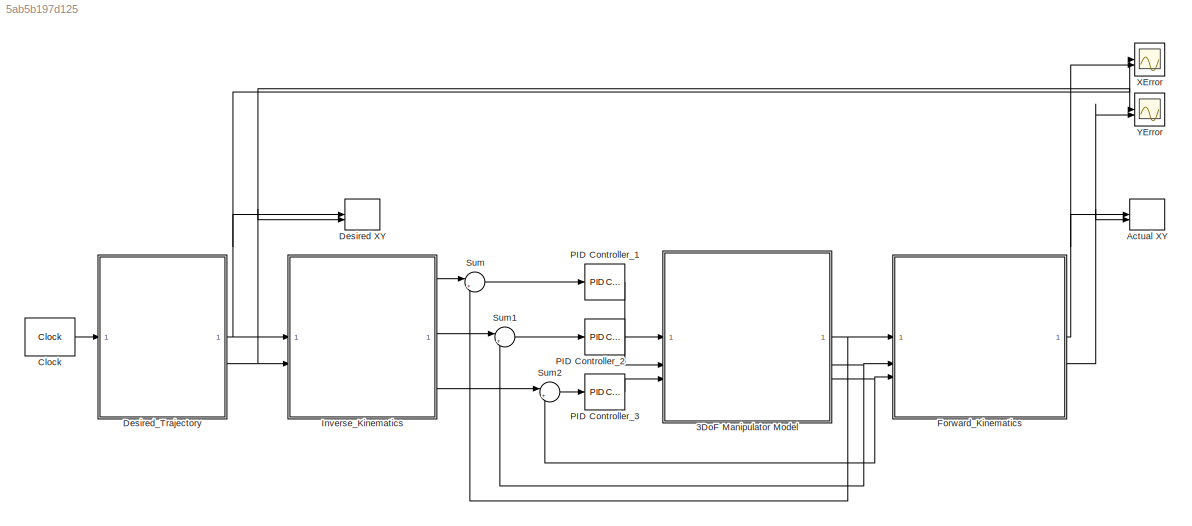
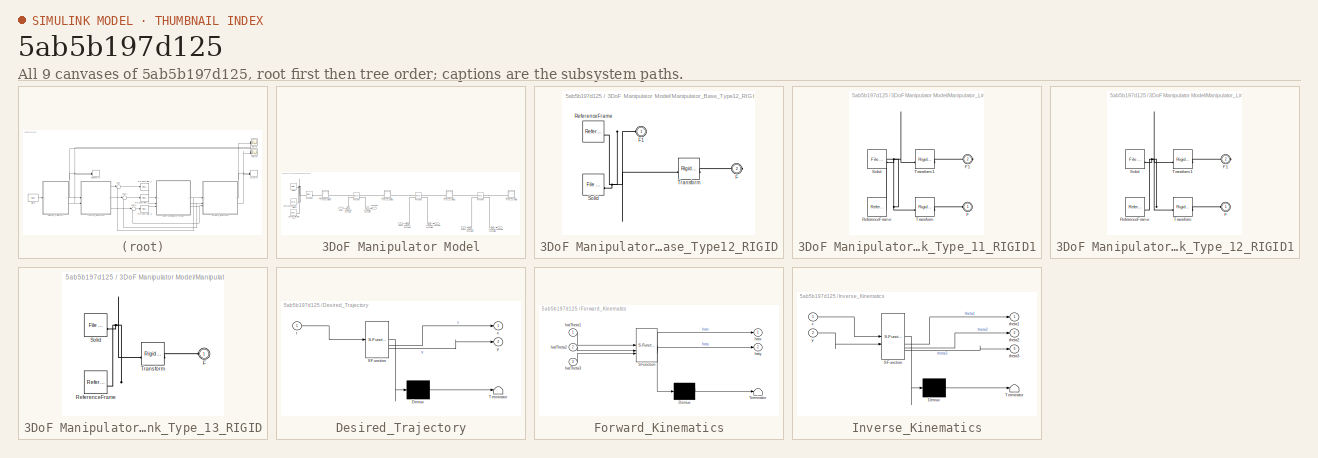
[diagram: thumbnail index - all 9 canvases of the model, root first then tree order]
MODEL slx_5ab5b197d125
KIND model
CONFIG AbsTol = auto
CONFIG EnableMultiTasking = off
CONFIG FixedStep = auto
CONFIG MaxStep = auto
CONFIG MinStep = auto
CONFIG RelTol = 1e-3
CONFIG SampleTimeConstraint = Unconstrained
CONFIG SolverName = VariableStepAuto
CONFIG StartTime = 0.0
CONFIG StopTime = 10.0
WORKSPACE source: external: MATLAB File  (data not in archive)
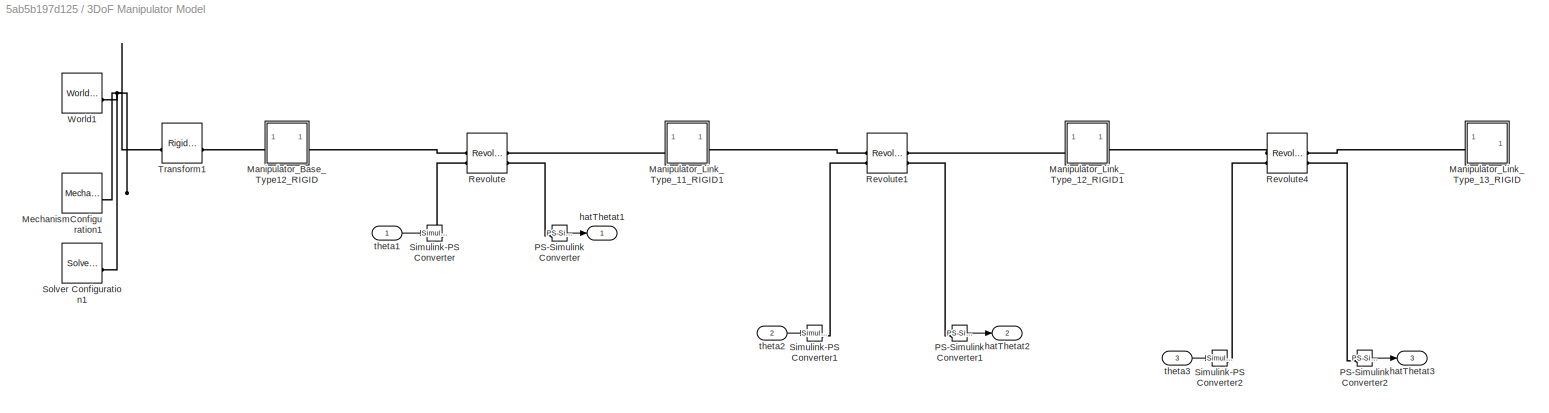
BLOCK [SubSystem] 3DoF Manipulator Model
BLOCK [SubSystem] 3DoF Manipulator Model/Manipulator_Base_Type12_RIGID
BLOCK [PMIOPort] 3DoF Manipulator Model/Manipulator_Base_Type12_RIGID/F
  Port = 2
  Side = Right
BLOCK [PMIOPort] 3DoF Manipulator Model/Manipulator_Base_Type12_RIGID/F1
  Side = Left
BLOCK [Reference] 3DoF Manipulator Model/Manipulator_Base_Type12_RIGID/ReferenceFrame  REF=sm_lib/Frames and
Transforms/Reference
Frame
  SourceBlock = sm_lib/Frames and\nTransforms/Reference\nFrame
  SourceType = Reference\nFrame
BLOCK [Reference] 3DoF Manipulator Model/Manipulator_Base_Type12_RIGID/Solid  REF=sm_lib/Body Elements/File Solid
  SourceBlock = sm_lib/Body Elements/File Solid
  SourceType = File Solid
BLOCK [Reference] 3DoF Manipulator Model/Manipulator_Base_Type12_RIGID/Transform  REF=sm_lib/Frames and
Transforms/Rigid
Transform
  SourceBlock = sm_lib/Frames and\nTransforms/Rigid\nTransform
  SourceType = Rigid\nTransform
BLOCK [SubSystem] 3DoF Manipulator Model/Manipulator_Link_Type_11_RIGID1
BLOCK [PMIOPort] 3DoF Manipulator Model/Manipulator_Link_Type_11_RIGID1/F
  Side = Left
BLOCK [PMIOPort] 3DoF Manipulator Model/Manipulator_Link_Type_11_RIGID1/F1
  Port = 2
  Side = Right
BLOCK [Reference] 3DoF Manipulator Model/Manipulator_Link_Type_11_RIGID1/ReferenceFrame  REF=sm_lib/Frames and
Transforms/Reference
Frame
  SourceBlock = sm_lib/Frames and\nTransforms/Reference\nFrame
  SourceType = Reference\nFrame
BLOCK [Reference] 3DoF Manipulator Model/Manipulator_Link_Type_11_RIGID1/Solid  REF=sm_lib/Body Elements/File Solid
  SourceBlock = sm_lib/Body Elements/File Solid
  SourceType = File Solid
BLOCK [Reference] 3DoF Manipulator Model/Manipulator_Link_Type_11_RIGID1/Transform  REF=sm_lib/Frames and
Transforms/Rigid
Transform
  SourceBlock = sm_lib/Frames and\nTransforms/Rigid\nTransform
  SourceType = Rigid\nTransform
BLOCK [Reference] 3DoF Manipulator Model/Manipulator_Link_Type_11_RIGID1/Transform1  REF=sm_lib/Frames and
Transforms/Rigid
Transform
  SourceBlock = sm_lib/Frames and\nTransforms/Rigid\nTransform
  SourceType = Rigid\nTransform
BLOCK [SubSystem] 3DoF Manipulator Model/Manipulator_Link_Type_12_RIGID1
BLOCK [PMIOPort] 3DoF Manipulator Model/Manipulator_Link_Type_12_RIGID1/F
  Side = Left
BLOCK [PMIOPort] 3DoF Manipulator Model/Manipulator_Link_Type_12_RIGID1/F1
  Port = 2
  Side = Right
BLOCK [Reference] 3DoF Manipulator Model/Manipulator_Link_Type_12_RIGID1/ReferenceFrame  REF=sm_lib/Frames and
Transforms/Reference
Frame
  SourceBlock = sm_lib/Frames and\nTransforms/Reference\nFrame
  SourceType = Reference\nFrame
BLOCK [Reference] 3DoF Manipulator Model/Manipulator_Link_Type_12_RIGID1/Solid  REF=sm_lib/Body Elements/File Solid
  SourceBlock = sm_lib/Body Elements/File Solid
  SourceType = File Solid
BLOCK [Reference] 3DoF Manipulator Model/Manipulator_Link_Type_12_RIGID1/Transform  REF=sm_lib/Frames and
Transforms/Rigid
Transform
  SourceBlock = sm_lib/Frames and\nTransforms/Rigid\nTransform
  SourceType = Rigid\nTransform
BLOCK [Reference] 3DoF Manipulator Model/Manipulator_Link_Type_12_RIGID1/Transform1  REF=sm_lib/Frames and
Transforms/Rigid
Transform
  SourceBlock = sm_lib/Frames and\nTransforms/Rigid\nTransform
  SourceType = Rigid\nTransform
BLOCK [SubSystem] 3DoF Manipulator Model/Manipulator_Link_Type_13_RIGID
BLOCK [PMIOPort] 3DoF Manipulator Model/Manipulator_Link_Type_13_RIGID/F
  Side = Left
BLOCK [Reference] 3DoF Manipulator Model/Manipulator_Link_Type_13_RIGID/ReferenceFrame  REF=sm_lib/Frames and
Transforms/Reference
Frame
  SourceBlock = sm_lib/Frames and\nTransforms/Reference\nFrame
  SourceType = Reference\nFrame
BLOCK [Reference] 3DoF Manipulator Model/Manipulator_Link_Type_13_RIGID/Solid  REF=sm_lib/Body Elements/File Solid
  SourceBlock = sm_lib/Body Elements/File Solid
  SourceType = File Solid
BLOCK [Reference] 3DoF Manipulator Model/Manipulator_Link_Type_13_RIGID/Transform  REF=sm_lib/Frames and
Transforms/Rigid
Transform
  SourceBlock = sm_lib/Frames and\nTransforms/Rigid\nTransform
  SourceType = Rigid\nTransform
BLOCK [Reference] 3DoF Manipulator Model/MechanismConfiguration1  REF=sm_lib/Utilities/Mechanism
Configuration
  SourceBlock = sm_lib/Utilities/Mechanism\nConfiguration
  SourceType = Mechanism\nConfiguration
BLOCK [Reference] 3DoF Manipulator Model/PS-Simulink Converter  REF=nesl_utility/PS-Simulink
Converter
  SourceBlock = nesl_utility/PS-Simulink\nConverter
  SourceType = PS-Simulink\nConverter
BLOCK [Reference] 3DoF Manipulator Model/PS-Simulink Converter1  REF=nesl_utility/PS-Simulink
Converter
  SourceBlock = nesl_utility/PS-Simulink\nConverter
  SourceType = PS-Simulink\nConverter
BLOCK [Reference] 3DoF Manipulator Model/PS-Simulink Converter2  REF=nesl_utility/PS-Simulink
Converter
  SourceBlock = nesl_utility/PS-Simulink\nConverter
  SourceType = PS-Simulink\nConverter
BLOCK [Reference] 3DoF Manipulator Model/Revolute  REF=sm_lib/Joints/Revolute Joint
  SourceBlock = sm_lib/Joints/Revolute Joint
  SourceType = Revolute Joint
BLOCK [Reference] 3DoF Manipulator Model/Revolute1  REF=sm_lib/Joints/Revolute Joint
  SourceBlock = sm_lib/Joints/Revolute Joint
  SourceType = Revolute Joint
BLOCK [Reference] 3DoF Manipulator Model/Revolute4  REF=sm_lib/Joints/Revolute Joint
  SourceBlock = sm_lib/Joints/Revolute Joint
  SourceType = Revolute Joint
BLOCK [Reference] 3DoF Manipulator Model/Simulink-PS Converter  REF=nesl_utility/Simulink-PS
Converter
  SourceBlock = nesl_utility/Simulink-PS\nConverter
  SourceType = Simulink-PS\nConverter
BLOCK [Reference] 3DoF Manipulator Model/Simulink-PS Converter1  REF=nesl_utility/Simulink-PS
Converter
  SourceBlock = nesl_utility/Simulink-PS\nConverter
  SourceType = Simulink-PS\nConverter
BLOCK [Reference] 3DoF Manipulator Model/Simulink-PS Converter2  REF=nesl_utility/Simulink-PS
Converter
  SourceBlock = nesl_utility/Simulink-PS\nConverter
  SourceType = Simulink-PS\nConverter
BLOCK [Reference] 3DoF Manipulator Model/Solver Configuration1  REF=nesl_utility/Solver
Configuration
  SourceBlock = nesl_utility/Solver\nConfiguration
  SourceType = Solver\nConfiguration
BLOCK [Reference] 3DoF Manipulator Model/Transform1  REF=sm_lib/Frames and
Transforms/Rigid
Transform
  SourceBlock = sm_lib/Frames and\nTransforms/Rigid\nTransform
  SourceType = Rigid\nTransform
BLOCK [Reference] 3DoF Manipulator Model/World1  REF=sm_lib/Frames and
Transforms/World Frame
  SourceBlock = sm_lib/Frames and\nTransforms/World Frame
  SourceType = World Frame
BLOCK [Outport] 3DoF Manipulator Model/hatThetat1
BLOCK [Outport] 3DoF Manipulator Model/hatThetat2
  Port = 2
BLOCK [Outport] 3DoF Manipulator Model/hatThetat3
  Port = 3
BLOCK [Inport] 3DoF Manipulator Model/theta1
BLOCK [Inport] 3DoF Manipulator Model/theta2
  Port = 2
BLOCK [Inport] 3DoF Manipulator Model/theta3
  Port = 3
BLOCK [Record] Actual XY
  CompatibilityTag = XY
  FileSettingsInternal = {"entries":[{"content":{"excelSettings":{"content":{},"type":"Streamout.ExcelSettings"}},"type":"Streamout.FileSettingStorage","uuid":"b553f0ab-1149-41ee-a516-91e8ab073484"}],"packageUris":["http://schema.mathworks.com/mf0/streamout_blocks/R2020a"],"version":"1.0"}
  Layout = [1 1]
  SignalsInternal = {"entries":[{"content":{"signals":[{"content":{"blockPath":["ThreeLinkManipulatorT1Model/Actual XY"],"channel":[],"dimensions":[1],"domain":"ThreeLinkManipulatorT1Model/Actual XY","lineColor":"#edb120","plots":[1],"port":1,"sid":[""],"signalID":1747,"signalName":"Forward_Kinematics:1"},"type":"RecordBlkView.Signal","uuid":"b54009f6-e2e7-4d63-a5de-b536afa3ba2f"},{"content":{"blockPath":["ThreeLinkM...<+469ch>
  VisualizationBindings = {"xyplotplugin":{"info":[{"series":[{"bindingParametersList":[{"parameter":"X-Axis","signalID":1747,"signalName":"Forward_Kinematics:1"},{"parameter":"Y-Axis","signalID":1751,"signalName":"Forward_Kinematics:2"}],"seriesID":52247}],"subplotID":1}]}}
BLOCK [Clock] Clock
  DisplayTime = on
BLOCK [Record] Desired XY
  CompatibilityTag = XY
  FileSettingsInternal = {"entries":[{"content":{"excelSettings":{"content":{},"type":"Streamout.ExcelSettings"}},"type":"Streamout.FileSettingStorage","uuid":"0cbad31b-23a0-4ab1-b96f-f93df053969d"}],"packageUris":["http://schema.mathworks.com/mf0/streamout_blocks/R2020a"],"version":"1.0"}
  Layout = [1 1]
  SignalsInternal = {"entries":[{"content":{"signals":[{"content":{"blockPath":["ThreeLinkManipulatorT1Model/Desired XY"],"channel":[],"dimensions":[1],"domain":"ThreeLinkManipulatorT1Model/Desired XY","lineColor":"#77ac30","plots":[1],"port":1,"sid":[""],"signalID":1755,"signalName":"Desired_Trajectory:1"},"type":"RecordBlkView.Signal","uuid":"bd6ffd26-5a02-4aa8-b3dd-16ede8a5cca1"},{"content":{"blockPath":["ThreeLin...<+473ch>
  VisualizationBindings = {"xyplotplugin":{"info":[{"series":[{"bindingParametersList":[{"parameter":"Y-Axis","signalID":1759,"signalName":"Desired_Trajectory:2"},{"parameter":"X-Axis","signalID":1755,"signalName":"Desired_Trajectory:1"}],"seriesID":49858}],"subplotID":1}]}}
BLOCK [SubSystem] Desired_Trajectory
  ErrorFcn = Stateflow.Translate.translate
  LibrarySourceBlock = simulink/User-Defined\nFunctions/MATLAB Function
  PermitHierarchicalResolution = ExplicitOnly
  SFBlockType = MATLAB Function
  TreatAsAtomicUnit = on
BLOCK [Demux] Desired_Trajectory/ Demux 
  Outputs = 1
BLOCK [S-Function] Desired_Trajectory/ SFunction 
  EnableBusSupport = on
  FunctionName = sf_sfun
  PortCounts = [1 3]
  SFcnIsStateOwnerBlock = off
  SFunctionDeploymentMode = off
  Tag = Stateflow S-Function 2
BLOCK [Terminator] Desired_Trajectory/ Terminator 
BLOCK [Inport] Desired_Trajectory/t
BLOCK [Outport] Desired_Trajectory/x
BLOCK [Outport] Desired_Trajectory/y
  Port = 2
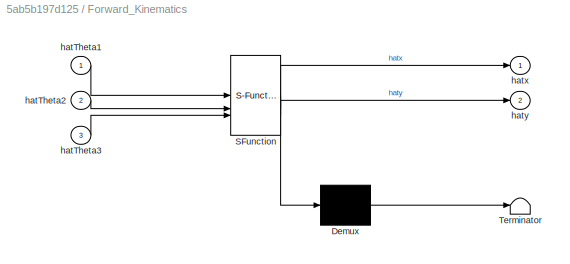
BLOCK [SubSystem] Forward_Kinematics
  ErrorFcn = Stateflow.Translate.translate
  LibrarySourceBlock = simulink/User-Defined\nFunctions/MATLAB Function
  PermitHierarchicalResolution = ExplicitOnly
  SFBlockType = MATLAB Function
  TreatAsAtomicUnit = on
BLOCK [Demux] Forward_Kinematics/ Demux 
  Outputs = 1
BLOCK [S-Function] Forward_Kinematics/ SFunction 
  EnableBusSupport = on
  FunctionName = sf_sfun
  PortCounts = [3 3]
  SFcnIsStateOwnerBlock = off
  SFunctionDeploymentMode = off
  Tag = Stateflow S-Function 3
BLOCK [Terminator] Forward_Kinematics/ Terminator 
BLOCK [Inport] Forward_Kinematics/hatTheta1
BLOCK [Inport] Forward_Kinematics/hatTheta2
  Port = 2
BLOCK [Inport] Forward_Kinematics/hatTheta3
  Port = 3
BLOCK [Outport] Forward_Kinematics/hatx
BLOCK [Outport] Forward_Kinematics/haty
  Port = 2
BLOCK [SubSystem] Inverse_Kinematics
  ErrorFcn = Stateflow.Translate.translate
  LibrarySourceBlock = simulink/User-Defined\nFunctions/MATLAB Function
  PermitHierarchicalResolution = ExplicitOnly
  SFBlockType = MATLAB Function
  TreatAsAtomicUnit = on
BLOCK [Demux] Inverse_Kinematics/ Demux 
  Outputs = 1
BLOCK [S-Function] Inverse_Kinematics/ SFunction 
  EnableBusSupport = on
  FunctionName = sf_sfun
  PortCounts = [2 4]
  SFcnIsStateOwnerBlock = off
  SFunctionDeploymentMode = off
  Tag = Stateflow S-Function 1
BLOCK [Terminator] Inverse_Kinematics/ Terminator 
BLOCK [Outport] Inverse_Kinematics/theta1
BLOCK [Outport] Inverse_Kinematics/theta2
  Port = 2
BLOCK [Outport] Inverse_Kinematics/theta3
  Port = 3
BLOCK [Inport] Inverse_Kinematics/x
BLOCK [Inport] Inverse_Kinematics/y
  Port = 2
BLOCK [Reference] PID Controller_1  REF=slpidlib/PID Controller
  LibrarySourceBlock = simulink/Continuous/PID Controller
  SourceBlock = slpidlib/PID Controller
  SourceType = PID 1dof
BLOCK [Reference] PID Controller_2  REF=slpidlib/PID Controller
  LibrarySourceBlock = simulink/Continuous/PID Controller
  SourceBlock = slpidlib/PID Controller
  SourceType = PID 1dof
BLOCK [Reference] PID Controller_3  REF=slpidlib/PID Controller
  LibrarySourceBlock = simulink/Continuous/PID Controller
  SourceBlock = slpidlib/PID Controller
  SourceType = PID 1dof
BLOCK [Sum] Sum
  Inputs = |+-
BLOCK [Sum] Sum1
  Inputs = |+-
BLOCK [Sum] Sum2
  Inputs = |+-
BLOCK [Scope] XError
  Floating = off
  NumInputPorts = 2
  ScopeSpecificationString = Simulink.scopes.TimeScopeBlockCfg('CurrentConfiguration', extmgr.ConfigurationSet(extmgr.Configuration('Core','General UI',true),extmgr.Configuration('Core','Source UI',true),extmgr.Configuration('Sources','WiredSimulink',true,'DataLoggingVariableName','ScopeData3'),extmgr.Configuration('Visuals','Time Domain',true,'SerializedDisplays',{struct('MinYLimReal','50.84922','MaxYLimReal','438.79453','YL...<+1449ch>
BLOCK [Scope] YError
  Floating = off
  NumInputPorts = 2
  ScopeSpecificationString = Simulink.scopes.TimeScopeBlockCfg('CurrentConfiguration', extmgr.ConfigurationSet(extmgr.Configuration('Core','General UI',true),extmgr.Configuration('Core','Source UI',true),extmgr.Configuration('Sources','WiredSimulink',true),extmgr.Configuration('Visuals','Time Domain',true,'SerializedDisplays',{struct('MinYLimReal','-168.73074','MaxYLimReal','445.17435','YLabelReal','','MinYLimMag',' 0.00000',...<+1414ch>
LINE 3DoF Manipulator Model/PS-Simulink Converter1:1 -> 3DoF Manipulator Model/hatThetat2:1
LINE 3DoF Manipulator Model/PS-Simulink Converter2:1 -> 3DoF Manipulator Model/hatThetat3:1
LINE 3DoF Manipulator Model/PS-Simulink Converter:1 -> 3DoF Manipulator Model/hatThetat1:1
LINE 3DoF Manipulator Model/theta1:1 -> 3DoF Manipulator Model/Simulink-PS Converter:1
LINE 3DoF Manipulator Model/theta2:1 -> 3DoF Manipulator Model/Simulink-PS Converter1:1
LINE 3DoF Manipulator Model/theta3:1 -> 3DoF Manipulator Model/Simulink-PS Converter2:1
NET 3DoF Manipulator Model:1 -> Forward_Kinematics:1, Sum:2
NET 3DoF Manipulator Model:2 -> Forward_Kinematics:2, Sum1:2
NET 3DoF Manipulator Model:3 -> Forward_Kinematics:3, Sum2:2
LINE Clock:1 -> Desired_Trajectory:1
NET Desired_Trajectory:1 -> Desired XY:1, Inverse_Kinematics:1, XError:1
NET Desired_Trajectory:2 -> Desired XY:2, Inverse_Kinematics:2, YError:1
NET Forward_Kinematics:1 -> Actual XY:1, XError:2
NET Forward_Kinematics:2 -> Actual XY:2, YError:2
LINE Inverse_Kinematics:1 -> Sum:1
LINE Inverse_Kinematics:2 -> Sum1:1
LINE Inverse_Kinematics:3 -> Sum2:1
LINE PID Controller_1:1 -> 3DoF Manipulator Model:1
LINE PID Controller_2:1 -> 3DoF Manipulator Model:2
LINE PID Controller_3:1 -> 3DoF Manipulator Model:3
LINE Sum1:1 -> PID Controller_2:1
LINE Sum2:1 -> PID Controller_3:1
LINE Sum:1 -> PID Controller_1:1
PNET net1: 3DoF Manipulator Model/Manipulator_Base_Type12_RIGID/F1:RConn1 -- 3DoF Manipulator Model/Manipulator_Base_Type12_RIGID/ReferenceFrame:RConn1 -- 3DoF Manipulator Model/Manipulator_Base_Type12_RIGID/Solid:RConn1 -- 3DoF Manipulator Model/Manipulator_Base_Type12_RIGID/Transform:LConn1
PLINE 3DoF Manipulator Model/Manipulator_Base_Type12_RIGID/F:RConn1 -- 3DoF Manipulator Model/Manipulator_Base_Type12_RIGID/Transform:RConn1
PLINE 3DoF Manipulator Model/Manipulator_Base_Type12_RIGID:LConn1 -- 3DoF Manipulator Model/Transform1:RConn1
PLINE 3DoF Manipulator Model/Manipulator_Base_Type12_RIGID:RConn1 -- 3DoF Manipulator Model/Revolute:LConn1
PLINE 3DoF Manipulator Model/Manipulator_Link_Type_11_RIGID1/F1:RConn1 -- 3DoF Manipulator Model/Manipulator_Link_Type_11_RIGID1/Transform1:RConn1
PLINE 3DoF Manipulator Model/Manipulator_Link_Type_11_RIGID1/F:RConn1 -- 3DoF Manipulator Model/Manipulator_Link_Type_11_RIGID1/Transform:RConn1
PNET net2: 3DoF Manipulator Model/Manipulator_Link_Type_11_RIGID1/ReferenceFrame:RConn1 -- 3DoF Manipulator Model/Manipulator_Link_Type_11_RIGID1/Solid:RConn1 -- 3DoF Manipulator Model/Manipulator_Link_Type_11_RIGID1/Transform1:LConn1 -- 3DoF Manipulator Model/Manipulator_Link_Type_11_RIGID1/Transform:LConn1
PLINE 3DoF Manipulator Model/Manipulator_Link_Type_11_RIGID1:LConn1 -- 3DoF Manipulator Model/Revolute:RConn1
PLINE 3DoF Manipulator Model/Manipulator_Link_Type_11_RIGID1:RConn1 -- 3DoF Manipulator Model/Revolute1:LConn1
PLINE 3DoF Manipulator Model/Manipulator_Link_Type_12_RIGID1/F1:RConn1 -- 3DoF Manipulator Model/Manipulator_Link_Type_12_RIGID1/Transform1:RConn1
PLINE 3DoF Manipulator Model/Manipulator_Link_Type_12_RIGID1/F:RConn1 -- 3DoF Manipulator Model/Manipulator_Link_Type_12_RIGID1/Transform:RConn1
PNET net3: 3DoF Manipulator Model/Manipulator_Link_Type_12_RIGID1/ReferenceFrame:RConn1 -- 3DoF Manipulator Model/Manipulator_Link_Type_12_RIGID1/Solid:RConn1 -- 3DoF Manipulator Model/Manipulator_Link_Type_12_RIGID1/Transform1:LConn1 -- 3DoF Manipulator Model/Manipulator_Link_Type_12_RIGID1/Transform:LConn1
PLINE 3DoF Manipulator Model/Manipulator_Link_Type_12_RIGID1:LConn1 -- 3DoF Manipulator Model/Revolute1:RConn1
PLINE 3DoF Manipulator Model/Manipulator_Link_Type_12_RIGID1:RConn1 -- 3DoF Manipulator Model/Revolute4:LConn1
PLINE 3DoF Manipulator Model/Manipulator_Link_Type_13_RIGID/F:RConn1 -- 3DoF Manipulator Model/Manipulator_Link_Type_13_RIGID/Transform:RConn1
PNET net4: 3DoF Manipulator Model/Manipulator_Link_Type_13_RIGID/ReferenceFrame:RConn1 -- 3DoF Manipulator Model/Manipulator_Link_Type_13_RIGID/Solid:RConn1 -- 3DoF Manipulator Model/Manipulator_Link_Type_13_RIGID/Transform:LConn1
PLINE 3DoF Manipulator Model/Manipulator_Link_Type_13_RIGID:LConn1 -- 3DoF Manipulator Model/Revolute4:RConn1
PNET net5: 3DoF Manipulator Model/MechanismConfiguration1:RConn1 -- 3DoF Manipulator Model/Solver Configuration1:RConn1 -- 3DoF Manipulator Model/Transform1:LConn1 -- 3DoF Manipulator Model/World1:RConn1
PLINE 3DoF Manipulator Model/PS-Simulink Converter1:LConn1 -- 3DoF Manipulator Model/Revolute1:RConn2
PLINE 3DoF Manipulator Model/PS-Simulink Converter2:LConn1 -- 3DoF Manipulator Model/Revolute4:RConn2
PLINE 3DoF Manipulator Model/PS-Simulink Converter:LConn1 -- 3DoF Manipulator Model/Revolute:RConn2
PLINE 3DoF Manipulator Model/Revolute1:LConn2 -- 3DoF Manipulator Model/Simulink-PS Converter1:RConn1
PLINE 3DoF Manipulator Model/Revolute4:LConn2 -- 3DoF Manipulator Model/Simulink-PS Converter2:RConn1
PLINE 3DoF Manipulator Model/Revolute:LConn2 -- 3DoF Manipulator Model/Simulink-PS Converter:RConn1
note: NET lines group one-source signal fan-out (src -> all destinations, sorted); 1:1 wires keep LINE; PNET lines group multi-terminal physical nets as a canonical sorted terminal list (undirected conserving connections); 2-terminal nets keep the pairwise PLINE form
CHART Inverse_Kinematics states=1 transitions=1
  STATE_LABEL 'eML_blk_kernel()'
  STATE_LABEL 'SCRIPT:\nfunction [theta1, theta2, theta3] = inverse_kinematics(x, y)\nl1 = 200; % Dimension: mm\nl2 = 200; % Dimension: mm\nl3 = 200; % Dimension: mm\nphi = 0; % Dimension: rad\nxn = x - l3*cos(phi);\nyn = y - l3*sin(phi);\ntheta2 = -acos((xn^2+yn^2-l1^2-l2^2)/(2*l1*l2)); % Dimension: rad (+, - choice enable)\ntheta1 = atan2(yn, xn) - atan2(l2*sin(theta2), l2*cos(theta2)+l1); % Dimension: rad\ntheta3 = phi...<+38ch>'
CHART Desired_Trajectory states=1 transitions=1
  STATE_LABEL 'eML_blk_kernel()'
  STATE_LABEL 'SCRIPT:\nfunction [x, y] = Desired_Trajectory(t)\n\nx = 300 + 100*cos(t); % Dimension: mm\ny = 200 + 100*sin(t); % Dimension: mm\n'
CHART Forward_Kinematics states=1 transitions=1
  STATE_LABEL 'eML_blk_kernel()'
  STATE_LABEL 'SCRIPT:\nfunction [hatx, haty] = Forward_Kinematics(hatTheta1, hatTheta2, hatTheta3)\n\nl1 = 200; % Dimension: mm\nl2 = 200; % Dimension: mm\nl3 = 200; % Dimension: mm\nhatx = l1*cos(hatTheta1) + l2*cos(hatTheta1+hatTheta2) + l3*cos(hatTheta1+hatTheta2+hatTheta3); % Dimension: mm\nhaty = l1*sin(hatTheta1) + l2*sin(hatTheta1+hatTheta2) + l3*sin(hatTheta1+hatTheta2+hatTheta3); % Dimension: mm\n'
CHART  states=0 transitions=0
CHART  states=0 transitions=0
CHART  states=0 transitions=0
